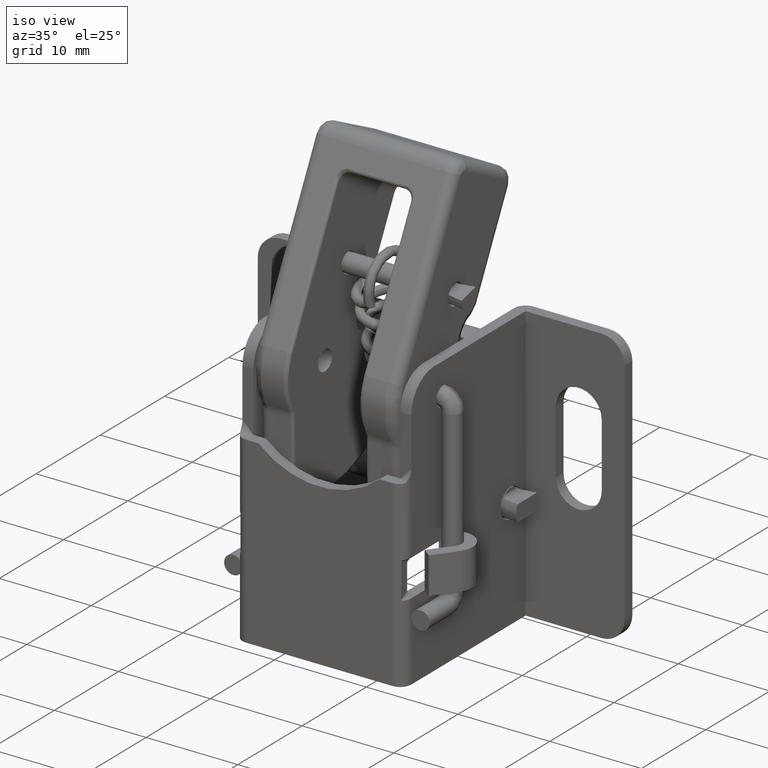
[diagram: clean part render]
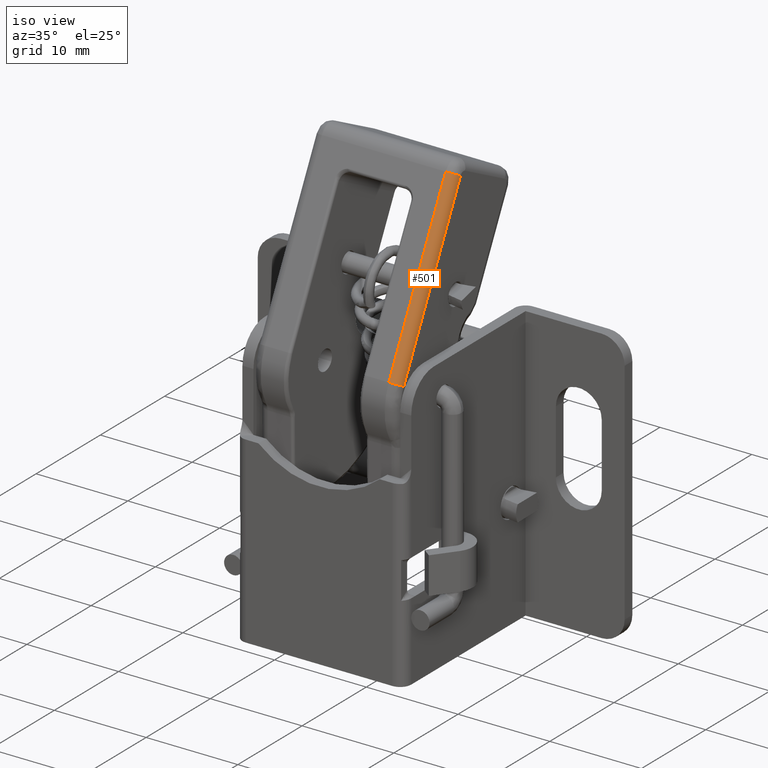
[diagram: same view with one face highlighted and labeled with its STEP entity id]
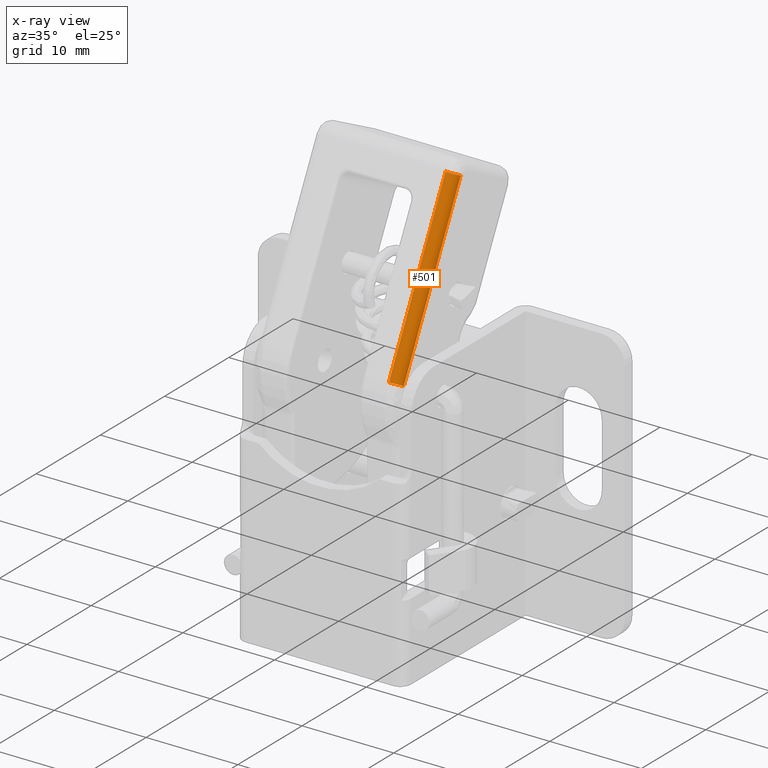
[diagram: x-ray of the same camera — body ghosted, the highlighted face saturated]
A machine part, iso view. The second image highlights one B-rep face of the part: STEP entity #501.
The next image is the same camera in x-ray: the body ghosted, the highlighted face saturated — about 0% of this face is hidden behind the body in this view.
In plain terms, the highlighted cylindrical surface (edge-blend (fillet) strip) has radius 1 mm, axis along (0, -0.454, -0.891).
Its self-contained STEP definition (entity closure, byte-faithful):
#501=ADVANCED_FACE('',(#2672),#2671,.T.);
#2671=CYLINDRICAL_SURFACE('',#5852,1.00000000000E+00);
#2672=FACE_OUTER_BOUND('',#5853,.T.);
#5849=CARTESIAN_POINT('',(2.10000000000E+01,-6.75000000000E+00,1.00000000000E+00));
#5850=DIRECTION('',(1.00000000000E+00,-0.00000000000E+00,-7.28761780267E-16));
#5851=DIRECTION('',(-7.28761780267E-16,-0.00000000000E+00,-1.00000000000E+00));
#5852=AXIS2_PLACEMENT_3D('',#5849,#5850,#5851);
#5853=EDGE_LOOP('',(#11939,#11940,#11941,#11942));
#11939=ORIENTED_EDGE('',*,*,#13022,.F.);
#11940=ORIENTED_EDGE('',*,*,#12968,.F.);
#11941=ORIENTED_EDGE('',*,*,#13024,.F.);
#11942=ORIENTED_EDGE('',*,*,#13026,.F.);
#12968=EDGE_CURVE('',#16610,#16617,#16618,.T.);
#13022=EDGE_CURVE('',#16617,#16965,#16966,.T.);
#13024=EDGE_CURVE('',#16978,#16610,#16979,.T.);
#13026=EDGE_CURVE('',#16965,#16978,#16991,.T.);
#16610=VERTEX_POINT('',#20684);
#16617=VERTEX_POINT('',#20689);
#16618=LINE('',#20690,#20691);
#16965=VERTEX_POINT('',#20920);
#16966=CIRCLE('',#20924,1.00000000000E+00);
#16978=VERTEX_POINT('',#20929);
#16979=CIRCLE('',#20933,1.00000000000E+00);
#16991=LINE('',#20938,#20939);
#20684=CARTESIAN_POINT('',(1.50000000000E+00,-7.75000000000E+00,1.00000000000E+00));
#20689=CARTESIAN_POINT('',(2.10000000000E+01,-7.75000000000E+00,1.00000000000E+00));
#20690=CARTESIAN_POINT('',(1.50000000000E+00,-7.75000000000E+00,1.00000000000E+00));
#20691=VECTOR('',#20692,1.95000000000E+01);
#20692=DIRECTION('',(1.00000000000E+00,0.00000000000E+00,-7.28761780267E-16));
#20920=CARTESIAN_POINT('',(2.10000000000E+01,-6.75000000000E+00,1.42108547152E-14));
#20921=CARTESIAN_POINT('',(2.10000000000E+01,-6.75000000000E+00,1.00000000000E+00));
#20922=DIRECTION('',(1.00000000000E+00,0.00000000000E+00,0.00000000000E+00));
#20923=DIRECTION('',(-0.00000000000E+00,-0.00000000000E+00,1.00000000000E+00));
#20924=AXIS2_PLACEMENT_3D('',#20921,#20922,#20923);
#20929=CARTESIAN_POINT('',(1.50000000000E+00,-6.75000000000E+00,0.00000000000E+00));
#20930=CARTESIAN_POINT('',(1.50000000000E+00,-6.75000000000E+00,1.00000000000E+00));
#20931=DIRECTION('',(-1.00000000000E+00,0.00000000000E+00,6.50521303491E-16));
#20932=DIRECTION('',(-6.50521303491E-16,-0.00000000000E+00,-1.00000000000E+00));
#20933=AXIS2_PLACEMENT_3D('',#20930,#20931,#20932);
#20938=CARTESIAN_POINT('',(2.10000000000E+01,-6.75000000000E+00,-1.42108547152E-14));
#20939=VECTOR('',#20940,1.95000000000E+01);
#20940=DIRECTION('',(-1.00000000000E+00,0.00000000000E+00,7.28761780267E-16));